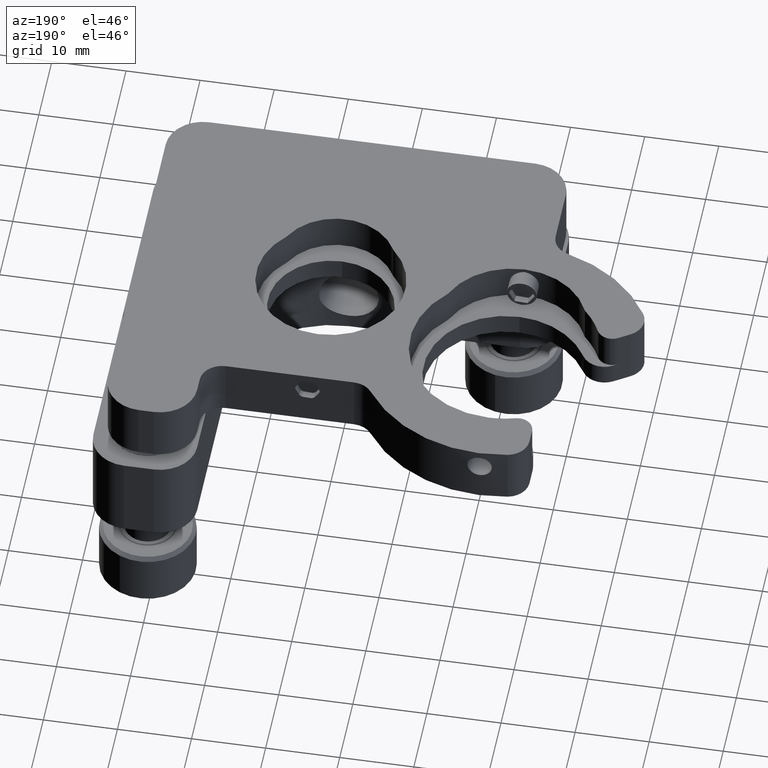
[diagram: clean part render]
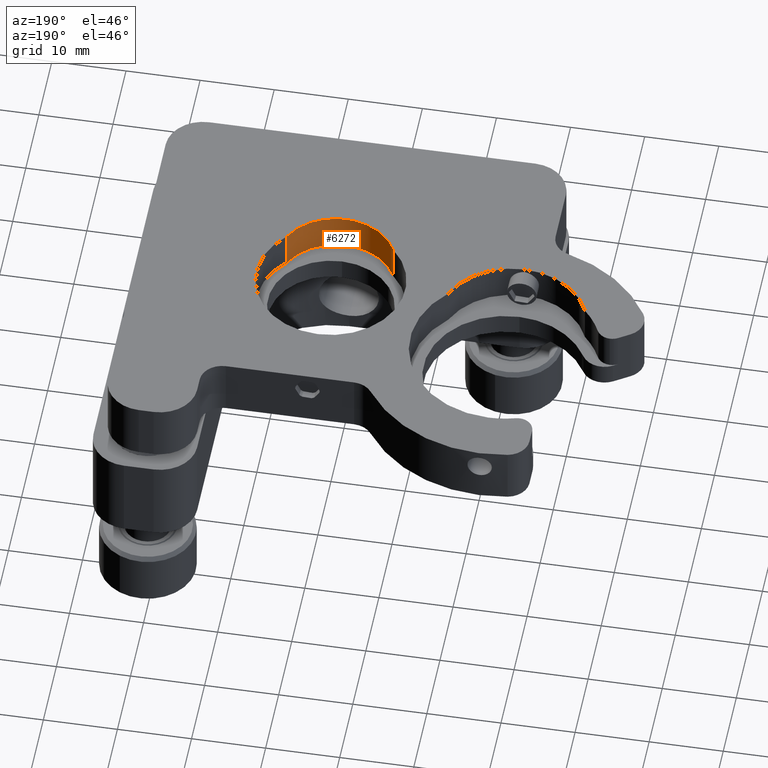
[diagram: same view with one face highlighted and labeled with its STEP entity id]
A machine part, auxiliary view. The second image highlights one B-rep face of the part: STEP entity #6272.
In plain terms, the highlighted cylindrical surface (partial cylindrical patch) has radius 8 mm, axis along (-0, 0, 1).
Its self-contained STEP definition (entity closure, byte-faithful):
#931 = VERTEX_POINT ( 'NONE', #7713 ) ;
#1210 = VERTEX_POINT ( 'NONE', #19306 ) ;
#2560 = DIRECTION ( 'NONE',  ( 2.220446049250311100E-016, 1.000000000000000000, 0.0000000000000000000 ) ) ;
#2758 = AXIS2_PLACEMENT_3D ( 'NONE', #18290, #10420, #2560 ) ;
#3054 = VERTEX_POINT ( 'NONE', #4460 ) ;
#3276 = EDGE_CURVE ( 'NONE', #1210, #931, #13180, .T. ) ;
#4071 = LINE ( 'NONE', #6141, #19442 ) ;
#4460 = CARTESIAN_POINT ( 'NONE',  ( -7.176085203789098100, -7.036071428571431400, 8.000000000000000000 ) ) ;
#5603 = ORIENTED_EDGE ( 'NONE', *, *, #10243, .T. ) ;
#6141 = CARTESIAN_POINT ( 'NONE',  ( -7.176085203789098100, -7.036071428571431400, 3.000000000000000000 ) ) ;
#6272 = ADVANCED_FACE ( 'NONE', ( #16134 ), #17610, .F. ) ;
#7204 = CARTESIAN_POINT ( 'NONE',  ( -7.176085203789098100, -7.036071428571431400, 3.000000000000000000 ) ) ;
#7255 = ORIENTED_EDGE ( 'NONE', *, *, #16899, .F. ) ;
#7713 = CARTESIAN_POINT ( 'NONE',  ( 7.176085203789091900, -7.036071428571430500, 8.000000000000000000 ) ) ;
#7983 = ORIENTED_EDGE ( 'NONE', *, *, #3276, .F. ) ;
#8112 = CARTESIAN_POINT ( 'NONE',  ( 7.176085203789091900, -7.036071428571430500, 3.000000000000000000 ) ) ;
#8903 = DIRECTION ( 'NONE',  ( -0.0000000000000000000, 0.0000000000000000000, 1.000000000000000000 ) ) ;
#8983 = CARTESIAN_POINT ( 'NONE',  ( 2.366322741052806500E-014, -3.500000000000000000, 8.000000000000000000 ) ) ;
#9772 = DIRECTION ( 'NONE',  ( -0.0000000000000000000, 0.0000000000000000000, 1.000000000000000000 ) ) ;
#9901 = DIRECTION ( 'NONE',  ( 2.220446049250311100E-016, 1.000000000000000000, 0.0000000000000000000 ) ) ;
#10141 = VERTEX_POINT ( 'NONE', #7204 ) ;
#10243 = EDGE_CURVE ( 'NONE', #3054, #931, #19360, .T. ) ;
#10420 = DIRECTION ( 'NONE',  ( -0.0000000000000000000, 0.0000000000000000000, 1.000000000000000000 ) ) ;
#13180 = LINE ( 'NONE', #8112, #16605 ) ;
#15316 = AXIS2_PLACEMENT_3D ( 'NONE', #19200, #9772, #9901 ) ;
#15821 = DIRECTION ( 'NONE',  ( -0.0000000000000000000, 0.0000000000000000000, 1.000000000000000000 ) ) ;
#16134 = FACE_OUTER_BOUND ( 'NONE', #19240, .T. ) ;
#16605 = VECTOR ( 'NONE', #15821, 1000.000000000000000 ) ;
#16803 = DIRECTION ( 'NONE',  ( 2.220446049250311100E-016, 1.000000000000000000, 0.0000000000000000000 ) ) ;
#16899 = EDGE_CURVE ( 'NONE', #10141, #1210, #17998, .T. ) ;
#17610 = CYLINDRICAL_SURFACE ( 'NONE', #15316, 8.000000000000000000 ) ;
#17998 = CIRCLE ( 'NONE', #2758, 8.000000000000000000 ) ;
#18290 = CARTESIAN_POINT ( 'NONE',  ( 2.366322741052806500E-014, -3.500000000000000000, 3.000000000000000000 ) ) ;
#18472 = ORIENTED_EDGE ( 'NONE', *, *, #18550, .T. ) ;
#18550 = EDGE_CURVE ( 'NONE', #10141, #3054, #4071, .T. ) ;
#18700 = DIRECTION ( 'NONE',  ( -0.0000000000000000000, 0.0000000000000000000, 1.000000000000000000 ) ) ;
#19200 = CARTESIAN_POINT ( 'NONE',  ( 2.366322741052806500E-014, -3.500000000000000000, 3.000000000000000000 ) ) ;
#19240 = EDGE_LOOP ( 'NONE', ( #5603, #7983, #7255, #18472 ) ) ;
#19306 = CARTESIAN_POINT ( 'NONE',  ( 7.176085203789091900, -7.036071428571430500, 3.000000000000000000 ) ) ;
#19360 = CIRCLE ( 'NONE', #19856, 8.000000000000000000 ) ;
#19442 = VECTOR ( 'NONE', #18700, 1000.000000000000000 ) ;
#19856 = AXIS2_PLACEMENT_3D ( 'NONE', #8983, #8903, #16803 ) ;